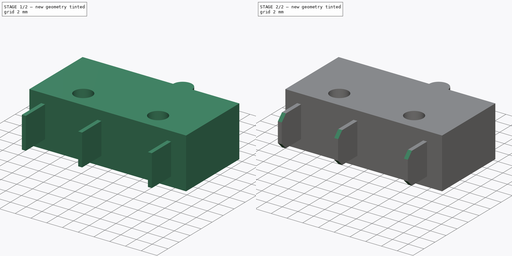
[diagram: build sequence overview — one tinted view per stage of 2, left to right]
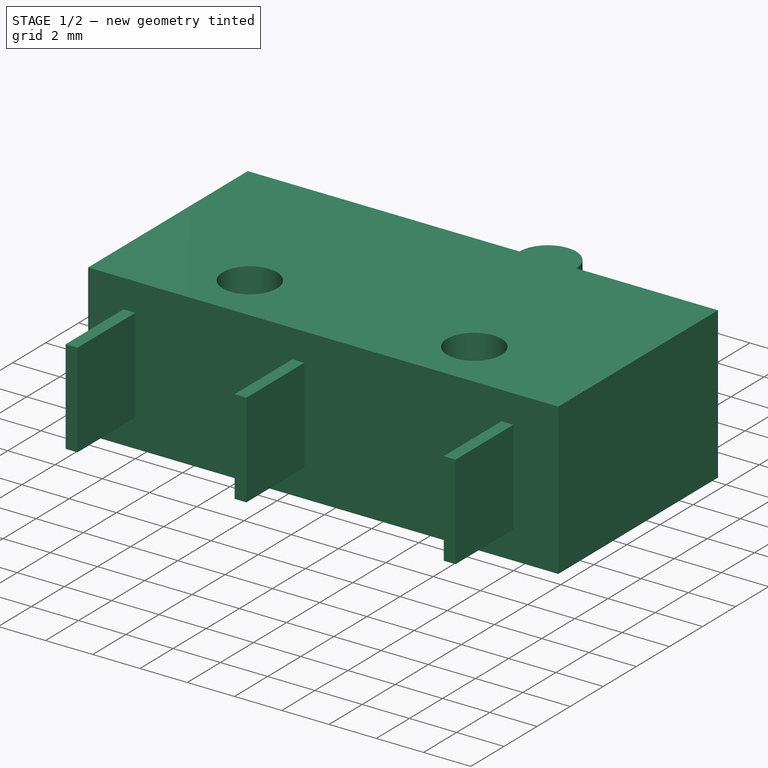
[diagram: stage 1 of 2 — iso view after this stage's code; geometry added in this stage tinted green]
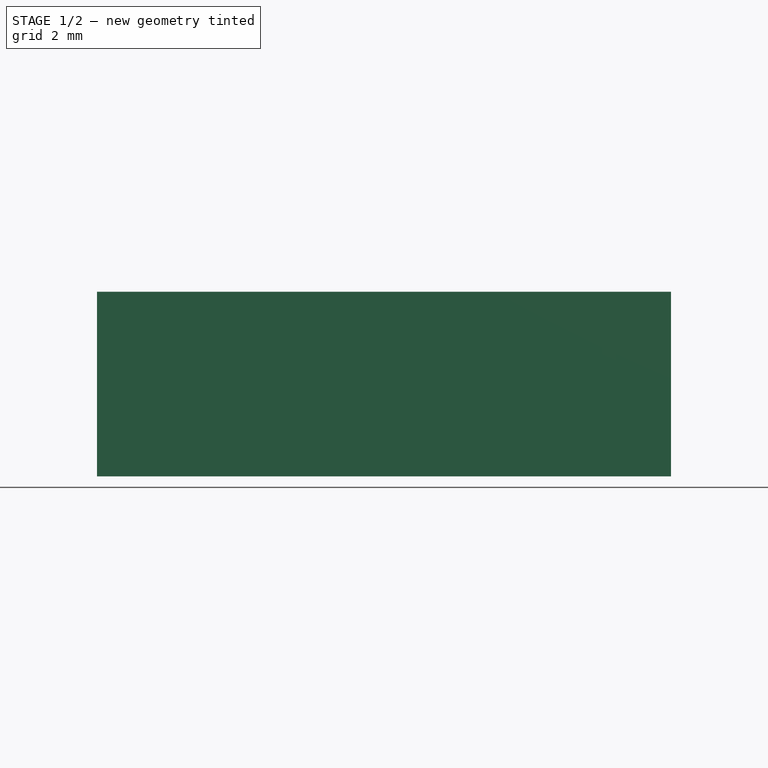
[diagram: stage 1 of 2 — front view after this stage's code; geometry added in this stage tinted green]
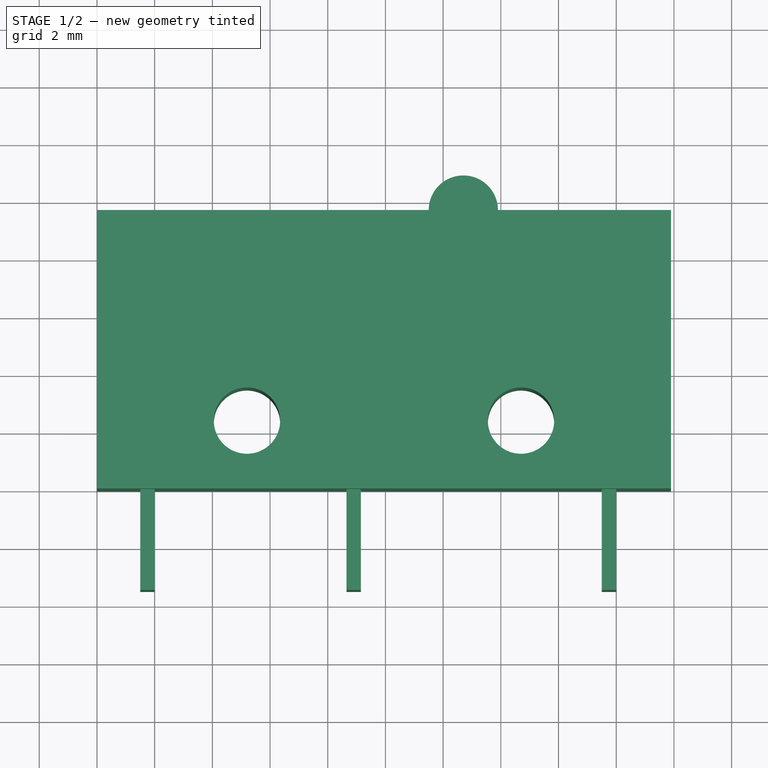
[diagram: stage 1 of 2 — top view after this stage's code; geometry added in this stage tinted green]
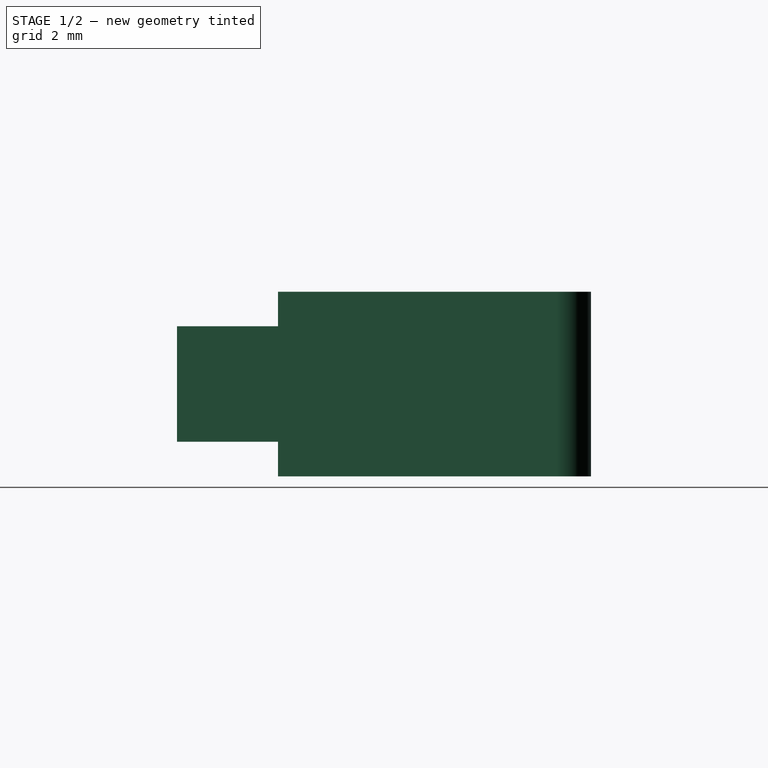
[diagram: stage 1 of 2 — right view after this stage's code; geometry added in this stage tinted green]
FCSTD DOCUMENT  (FreeCAD 0.19R24291 (Git))
Label: Limit Switch X4G303N1BBJ61
License: All rights reserved
LicenseURL: http://en.wikipedia.org/wiki/All_rights_reserved
objects: Sketcher::SketchObject×2, PartDesign::Pad×2, PartDesign::Chamfer×1, PartDesign::Body×1
note: 9 computed .brp shape members not serialized (recipe doc carries the construction recipe); baked Part::Feature solids carry a one-line shape summary decoded from their .brp

FEATURE [Sketcher::SketchObject] Sketch
  FullyConstrained = true
  MapMode = 5
  Support = -> [XY_Plane]
  sketch-geometry (12):
    g0: LineSegment StartX=0 StartY=0 StartZ=0 EndX=19.9 EndY=0 EndZ=0
    g1: LineSegment StartX=19.9 StartY=0 StartZ=0 EndX=19.9 EndY=9.65 EndZ=0
    g2: LineSegment StartX=19.9 StartY=9.65 StartZ=0 EndX=13.9 EndY=9.65 EndZ=0
    g3: LineSegment StartX=0 StartY=9.65 StartZ=0 EndX=0 EndY=0 EndZ=0
    g4: Circle CenterX=5.2 CenterY=2.35 CenterZ=0 NormalX=0 NormalY=0 NormalZ=1 AngleXU=0 Radius=1.15
    g5: Circle CenterX=14.7 CenterY=2.35 CenterZ=0 NormalX=0 NormalY=0 NormalZ=1 AngleXU=0 Radius=1.15
    g6: ArcOfCircle CenterX=12.7 CenterY=9.65 CenterZ=0 NormalX=0 NormalY=0 NormalZ=1 AngleXU=0 Radius=1.2 StartAngle=-9e-16 EndAngle=3.14159
    g7: LineSegment StartX=11.5 StartY=9.65 StartZ=0 EndX=0 EndY=9.65 EndZ=0
    g8: LineSegment StartX=5.2 StartY=2.35 StartZ=0 EndX=9.95 EndY=2.35 EndZ=0
    g9: LineSegment StartX=9.95 StartY=2.35 StartZ=0 EndX=14.7 EndY=2.35 EndZ=0
    g10: LineSegment StartX=0 StartY=0 StartZ=0 EndX=9.95 EndY=2.35 EndZ=0
    g11: LineSegment StartX=9.95 StartY=2.35 StartZ=0 EndX=19.9 EndY=0 EndZ=0
  constraints (32):
    c: Coincident(g0,g1)
    c: Coincident(g1,g2)
    c: Coincident(g7,g3)
    c: Coincident(g3,g0)
    c: Horizontal(g0)
    c: Horizontal(g2)
    c: Vertical(g1)
    c: Vertical(g3)
    c: Coincident(g0,g-1)
    c: PointOnObject(g6,g2)
    c: Coincident(g2,g6)
    c: Coincident(g7,g6)
    c: Tangent(g2,g7)
    c: Diameter(g5) = 2.3
    c: Equal(g5,g4)
    c: DistanceY(g3,g3) = 9.65
    c: DistanceX(g0,g0) = 19.9
    c: DistanceY(g0,g5) = 2.35
    c: Coincident(g8,g4)
    c: Horizontal(g8)
    c: Coincident(g9,g8)
    c: Coincident(g9,g5)
    c: Horizontal(g9)
    c: Coincident(g10,g0)
    c: Coincident(g10,g8)
    c: Coincident(g11,g8)
    c: Coincident(g11,g0)
    c: Equal(g9,g8)
    c: Equal(g11,g10)
    c: DistanceX(g4,g5) = 9.5
    c: DistanceX(g4,g6) = 7.5
    c: Diameter(g6) = 2.4
FEATURE [PartDesign::Pad] Pad
  Direction = (1,1,1)
  Length = 6.4
  Length2 = 100
  Profile = -> Sketch
  Type = 0
FEATURE [Sketcher::SketchObject] Sketch001
  ExternalGeometry = -> [Pad]
  FullyConstrained = true
  MapMode = 5
  Placement = pos=(0,0,0) rot=(1,0,0;1.5708rad)
  Support = -> [XZ_Plane]
  sketch-geometry (16):
    g0: LineSegment StartX=1.5 StartY=5.2 StartZ=0 EndX=2 EndY=5.2 EndZ=0
    g1: LineSegment StartX=2 StartY=5.2 StartZ=0 EndX=2 EndY=1.2 EndZ=0
    g2: LineSegment StartX=2 StartY=1.2 StartZ=0 EndX=1.5 EndY=1.2 EndZ=0
    g3: LineSegment StartX=1.5 StartY=1.2 StartZ=0 EndX=1.5 EndY=5.2 EndZ=0
    g4: LineSegment StartX=8.65 StartY=5.2 StartZ=0 EndX=9.15 EndY=5.2 EndZ=0
    g5: LineSegment StartX=9.15 StartY=5.2 StartZ=0 EndX=9.15 EndY=1.2 EndZ=0
    g6: LineSegment StartX=9.15 StartY=1.2 StartZ=0 EndX=8.65 EndY=1.2 EndZ=0
    g7: LineSegment StartX=8.65 StartY=1.2 StartZ=0 EndX=8.65 EndY=5.2 EndZ=0
    g8: LineSegment StartX=17.5 StartY=5.2 StartZ=0 EndX=18 EndY=5.2 EndZ=0
    g9: LineSegment StartX=18 StartY=5.2 StartZ=0 EndX=18 EndY=1.2 EndZ=0
    g10: LineSegment StartX=18 StartY=1.2 StartZ=0 EndX=17.5 EndY=1.2 EndZ=0
    g11: LineSegment StartX=17.5 StartY=1.2 StartZ=0 EndX=17.5 EndY=5.2 EndZ=0
    g12: LineSegment StartX=4.05 StartY=6.4 StartZ=0 EndX=5.2 EndY=6.4 EndZ=0
    g13: LineSegment StartX=5.2 StartY=6.4 StartZ=0 EndX=6.35 EndY=6.4 EndZ=0
    g14: LineSegment StartX=0 StartY=6.4 StartZ=0 EndX=1.5 EndY=5.2 EndZ=0
    g15: LineSegment StartX=1.5 StartY=1.2 StartZ=0 EndX=0 EndY=0 EndZ=0
  constraints (45):
    c: Coincident(g0,g1)
    c: Coincident(g1,g2)
    c: Coincident(g2,g3)
    c: Coincident(g3,g0)
    c: Horizontal(g0)
    c: Horizontal(g2)
    c: Vertical(g1)
    c: Vertical(g3)
    c: Coincident(g4,g5)
    c: Coincident(g5,g6)
    c: Coincident(g6,g7)
    c: Coincident(g7,g4)
    c: Horizontal(g4)
    c: Horizontal(g6)
    c: Vertical(g5)
    c: Vertical(g7)
    c: Coincident(g8,g9)
    c: Coincident(g9,g10)
    c: Coincident(g10,g11)
    c: Coincident(g11,g8)
    c: Horizontal(g8)
    c: Horizontal(g10)
    c: Vertical(g9)
    c: Vertical(g11)
    c: Equal(g8,g4)
    c: Equal(g4,g0)
    c: Equal(g1,g7)
    c: Equal(g5,g11)
    c: PointOnObject(g0,g8)
    c: PointOnObject(g0,g4)
    c: DistanceY(g3,g3) = 4
    c: DistanceX(g0,g0) = 0.5
    c: Coincident(g12,g-3)
    c: Coincident(g13,g12)
    c: Coincident(g13,g-3)
    c: Equal(g13,g12)
    c: DistanceX(g0,g12) = 3.2
    c: DistanceX(g12,g4) = 3.45
    c: Coincident(g14,g-4)
    c: Coincident(g14,g0)
    c: Coincident(g15,g2)
    c: Coincident(g15,g-1)
    c: Equal(g15,g14)
    c: DistanceX(g12,g8) = 12.3
    c: Horizontal(g13)
FEATURE [PartDesign::Pad] Pad001
  BaseFeature = -> Pad
  Direction = (1,1,1)
  Length = 3.5
  Length2 = 100
  Profile = -> Sketch001
  Type = 0
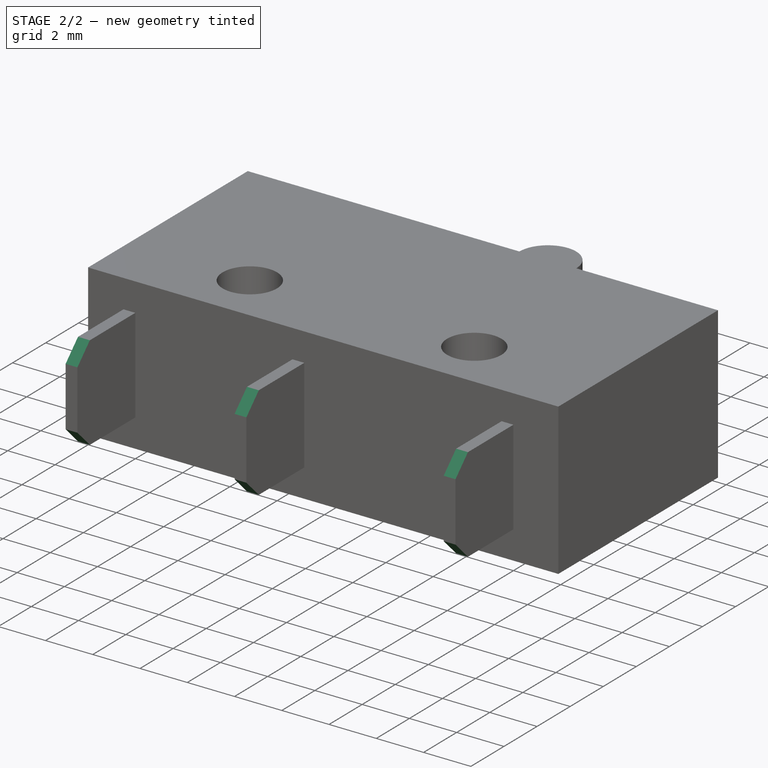
[diagram: stage 2 of 2 — iso view after this stage's code; geometry added in this stage tinted green]
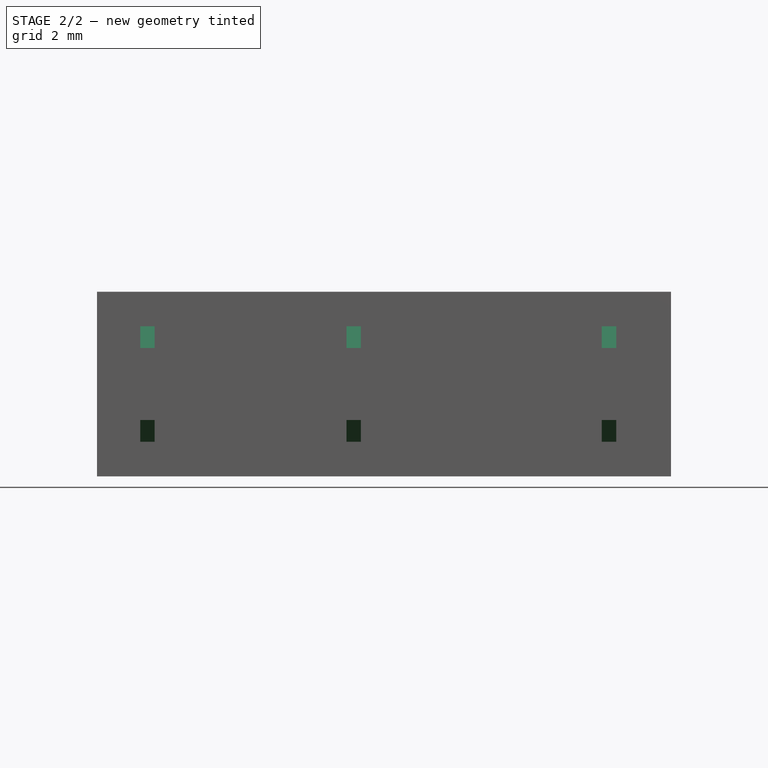
[diagram: stage 2 of 2 — front view after this stage's code; geometry added in this stage tinted green]
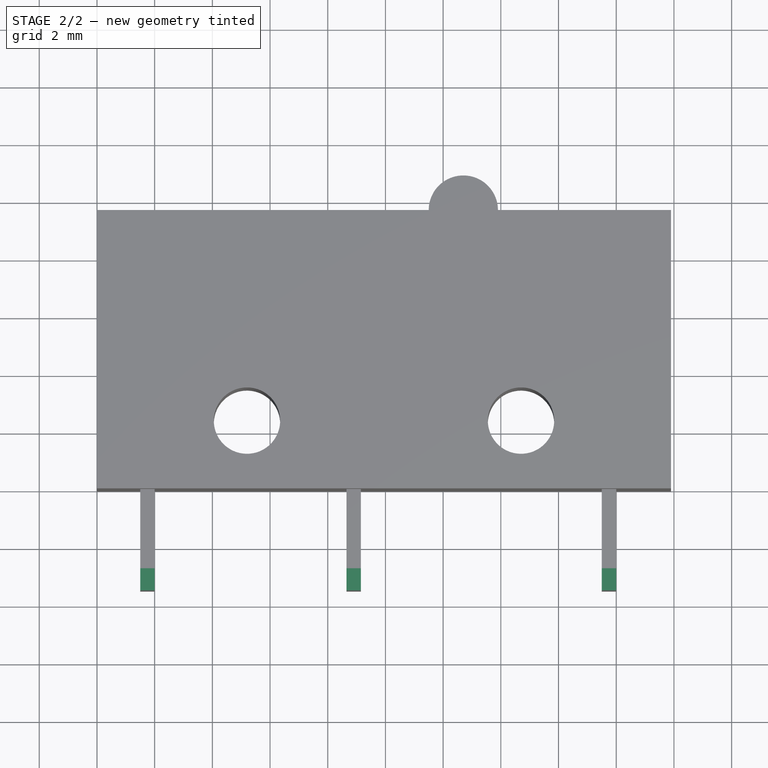
[diagram: stage 2 of 2 — top view after this stage's code; geometry added in this stage tinted green]
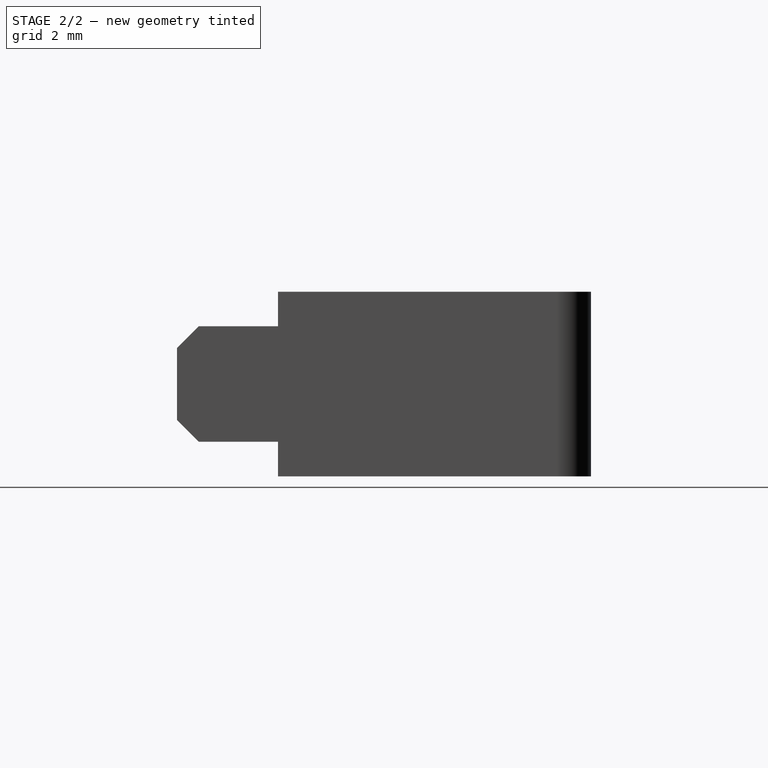
[diagram: stage 2 of 2 — right view after this stage's code; geometry added in this stage tinted green]
FEATURE [PartDesign::Chamfer] Chamfer
  Angle = 45
  Base = -> Pad001 [Edge51,Edge55,Edge39,Edge35,Edge43,Edge47]
  BaseFeature = -> Pad001
  ChamferType = 0
  FlipDirection = false
  Size = 0.75
  Size2 = 1
  SupportTransform = false
FEATURE [PartDesign::Body] Body
  Group = -> [Sketch,Pad,Sketch001,Pad001,Chamfer]
  Origin = -> Origin
  Tip = -> Chamfer
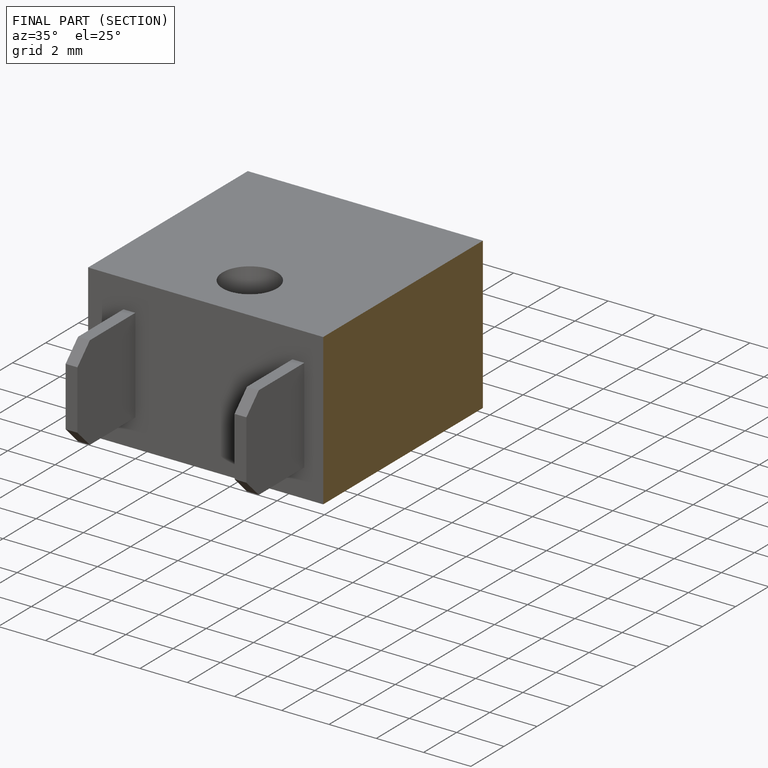
[diagram: finished part — half-section view (interior)]
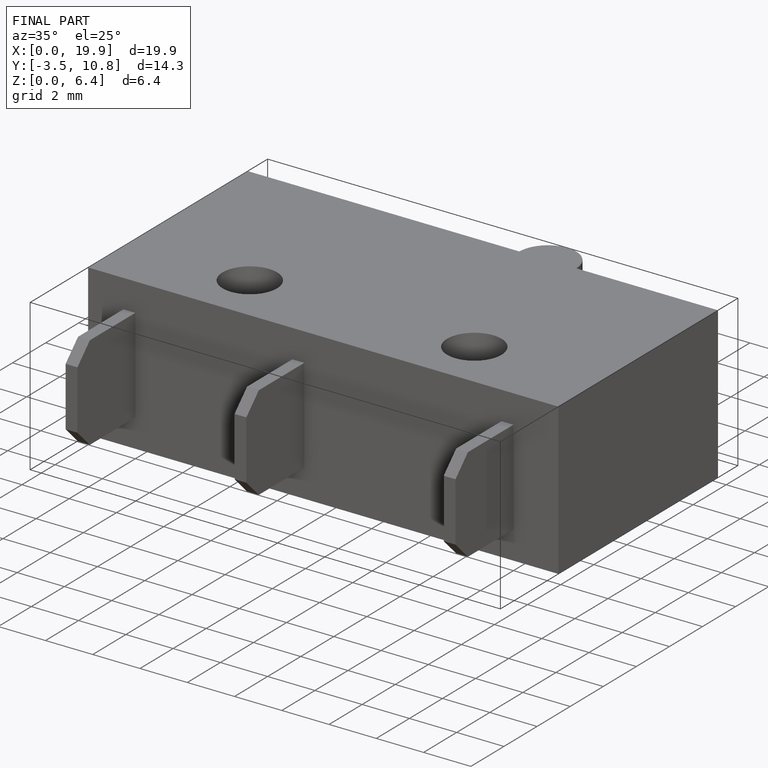
[diagram: finished part — iso view with bounding-box wireframe]
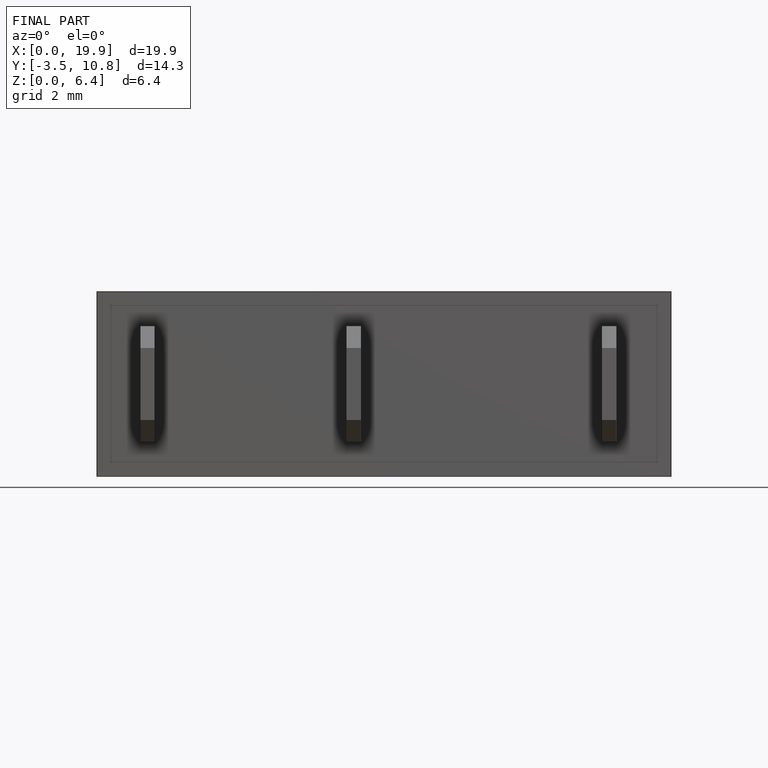
[diagram: finished part — front view with bounding-box wireframe]
